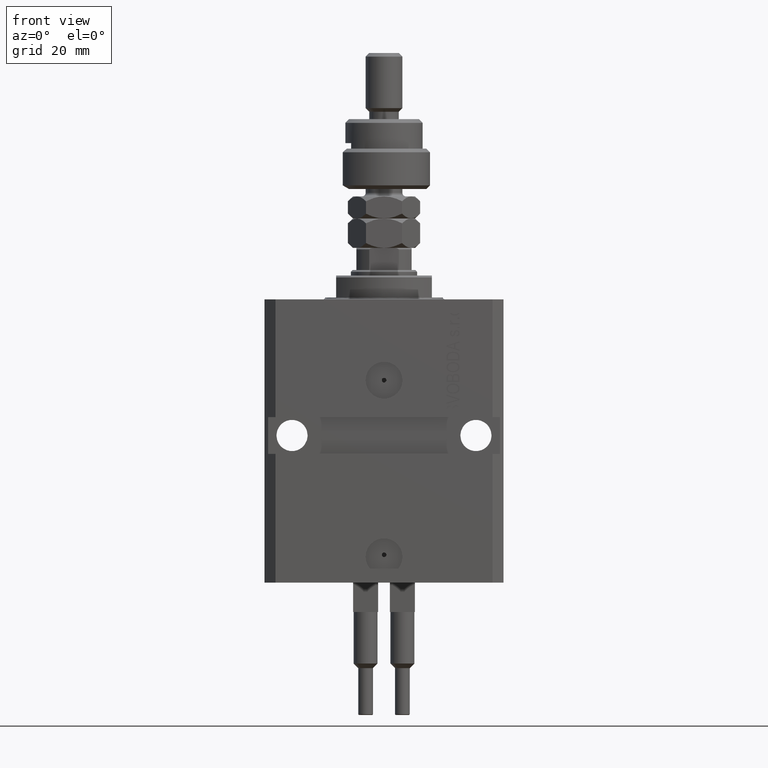
[diagram: clean part render]
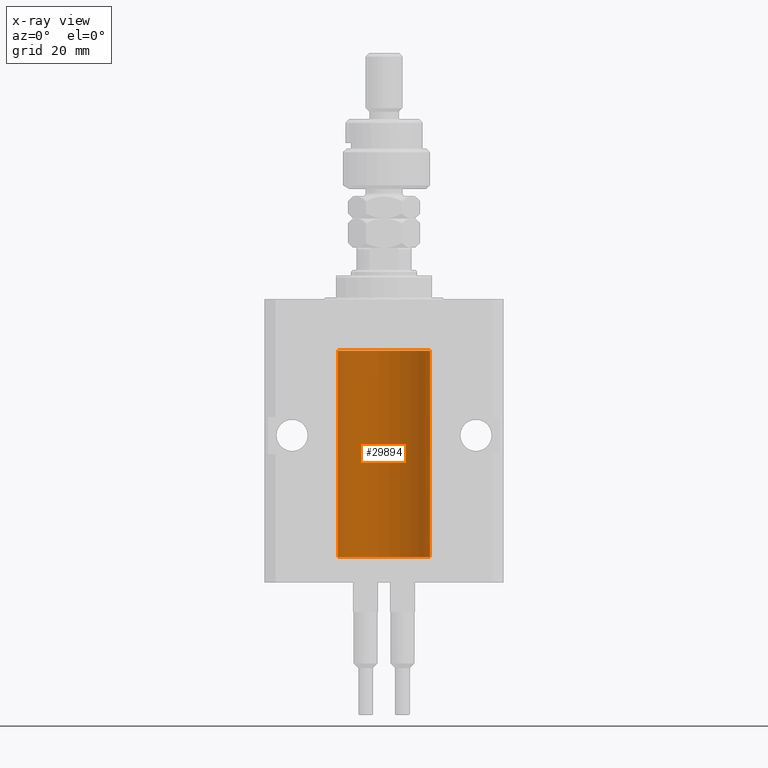
[diagram: x-ray — body ghosted, one internal face saturated and labeled with its STEP entity id]
A machine part, front view, then the same camera in x-ray: the body is ghosted and one INTERNAL B-rep face — a face not visible from any outside direction — is saturated and labeled: STEP entity #29894.
In plain terms, the highlighted cylindrical surface (partial cylindrical patch) has radius 12.5 mm, axis along (0, 0, 1).
Its self-contained STEP definition (entity closure, byte-faithful):
#1976 = CARTESIAN_POINT ( 'NONE',  ( 12.48436522214885080, 0.6250000000001435518, -22.16312747540306560 ) ) ;
#2001 = VERTEX_POINT ( 'NONE', #31284 ) ;
#2051 = AXIS2_PLACEMENT_3D ( 'NONE', #8150, #11751, #4046 ) ;
#2083 = ORIENTED_EDGE ( 'NONE', *, *, #42289, .T. ) ;
#2467 = CARTESIAN_POINT ( 'NONE',  ( 12.50000000000000000, -6.043189914290669986E-17, -22.62500000000000000 ) ) ;
#2958 = ORIENTED_EDGE ( 'NONE', *, *, #4509, .T. ) ;
#3753 = VERTEX_POINT ( 'NONE', #34932 ) ;
#3799 = CARTESIAN_POINT ( 'NONE',  ( 12.48809900631782099, 0.5573988467445673001, -65.32640147935475738 ) ) ;
#4046 = DIRECTION ( 'NONE',  ( 1.000000000000000000, 0.000000000000000000, 0.000000000000000000 ) ) ;
#4509 = EDGE_CURVE ( 'NONE', #37263, #4749, #19302, .T. ) ;
#4528 = EDGE_CURVE ( 'NONE', #22513, #2001, #8780, .T. ) ;
#4553 = CARTESIAN_POINT ( 'NONE',  ( 12.49915742890631876, 0.1636982395582385896, -65.60872397847025184 ) ) ;
#4593 = LINE ( 'NONE', #48269, #49114 ) ;
#4694 = ORIENTED_EDGE ( 'NONE', *, *, #5544, .T. ) ;
#4749 = VERTEX_POINT ( 'NONE', #37663 ) ;
#5305 = CARTESIAN_POINT ( 'NONE',  ( 12.50000000000000000, 0.000000000000000000, -70.09999999999999432 ) ) ;
#5544 = EDGE_CURVE ( 'NONE', #2001, #7371, #22794, .T. ) ;
#5564 = CARTESIAN_POINT ( 'NONE',  ( 12.49625698805481200, 0.3151108292486943241, -22.54593695688172161 ) ) ;
#7314 = ORIENTED_EDGE ( 'NONE', *, *, #26065, .T. ) ;
#7371 = VERTEX_POINT ( 'NONE', #50505 ) ;
#7433 = CARTESIAN_POINT ( 'NONE',  ( 12.48520578595314845, 0.6087855079133686065, -21.83656717509346024 ) ) ;
#7454 = VERTEX_POINT ( 'NONE', #25284 ) ;
#8150 = CARTESIAN_POINT ( 'NONE',  ( 0.000000000000000000, 0.000000000000000000, -13.99999999999999822 ) ) ;
#8780 = B_SPLINE_CURVE_WITH_KNOTS ( 'NONE', 3,
 ( #16123, #42858, #4553, #46971, #38743, #3799, #43356, #27934 ),
 .UNSPECIFIED., .F., .F.,
 ( 4, 2, 2, 4 ),
 ( 1.784246692340212412E-18, 0.0002443481056285665750, 0.0004886962112571313068, 0.0009773924225142606621 ),
 .UNSPECIFIED. ) ;
#9177 = CARTESIAN_POINT ( 'NONE',  ( 12.50000000000000178, 0.08262306818362646910, -22.62499999999997158 ) ) ;
#10021 = ORIENTED_EDGE ( 'NONE', *, *, #29961, .T. ) ;
#11751 = DIRECTION ( 'NONE',  ( 0.000000000000000000, 0.000000000000000000, 1.000000000000000000 ) ) ;
#11788 = CARTESIAN_POINT ( 'NONE',  ( 12.49999999999999112, 0.1631389616600886772, -21.37500000000019185 ) ) ;
#12041 = EDGE_CURVE ( 'NONE', #3753, #4749, #15662, .T. ) ;
#12355 = CARTESIAN_POINT ( 'NONE',  ( 12.48436522214846711, 0.6250000000078848039, -64.99999999999923261 ) ) ;
#12912 = LINE ( 'NONE', #17023, #29801 ) ;
#13190 = ORIENTED_EDGE ( 'NONE', *, *, #43307, .F. ) ;
#13278 = VERTEX_POINT ( 'NONE', #2467 ) ;
#13899 = ORIENTED_EDGE ( 'NONE', *, *, #4528, .T. ) ;
#14627 = AXIS2_PLACEMENT_3D ( 'NONE', #18750, #26966, #14894 ) ;
#14894 = DIRECTION ( 'NONE',  ( 1.000000000000000000, 0.000000000000000000, 0.000000000000000000 ) ) ;
#15559 = EDGE_CURVE ( 'NONE', #42394, #7454, #15983, .T. ) ;
#15662 = LINE ( 'NONE', #31079, #21892 ) ;
#15983 = B_SPLINE_CURVE_WITH_KNOTS ( 'NONE', 3,
 ( #47506, #16156, #7433, #34670, #22865, #19770, #11788, #23122 ),
 .UNSPECIFIED., .F., .F.,
 ( 4, 2, 2, 4 ),
 ( 0.0009773924225142526390, 0.001221629287363798890, 0.001465866152213344924, 0.001954339881912444798 ),
 .UNSPECIFIED. ) ;
#16123 = CARTESIAN_POINT ( 'NONE',  ( 12.50000000000000000, -1.836039810331332019E-15, -65.62500000000000000 ) ) ;
#16156 = CARTESIAN_POINT ( 'NONE',  ( 12.48436522214888100, 0.6249999999996767031, -21.91847339462351130 ) ) ;
#17023 = CARTESIAN_POINT ( 'NONE',  ( 12.50000000000000000, 0.000000000000000000, -70.09999999999999432 ) ) ;
#17139 = CARTESIAN_POINT ( 'NONE',  ( 12.48436522214846889, 0.6250000000078781426, -21.99999999999923261 ) ) ;
#17304 = CARTESIAN_POINT ( 'NONE',  ( 12.50000000000000000, 0.000000000000000000, -70.09999999999999432 ) ) ;
#17433 = VERTEX_POINT ( 'NONE', #17304 ) ;
#18750 = CARTESIAN_POINT ( 'NONE',  ( 0.000000000000000000, 0.000000000000000000, -70.09999999999999432 ) ) ;
#19302 = CIRCLE ( 'NONE', #2051, 12.50000000000000000 ) ;
#19517 = CYLINDRICAL_SURFACE ( 'NONE', #14627, 12.50000000000000000 ) ;
#19770 = CARTESIAN_POINT ( 'NONE',  ( 12.49631206032075958, 0.3252904079142805438, -21.44139700214925526 ) ) ;
#20272 = DIRECTION ( 'NONE',  ( -0.000000000000000000, -0.000000000000000000, 1.000000000000000000 ) ) ;
#21744 = LINE ( 'NONE', #5305, #45276 ) ;
#21892 = VECTOR ( 'NONE', #46248, 1000.000000000000000 ) ;
#22513 = VERTEX_POINT ( 'NONE', #45228 ) ;
#22794 = B_SPLINE_CURVE_WITH_KNOTS ( 'NONE', 3,
 ( #12355, #31632, #35231, #47313, #43961, #47824, #28287, #47570 ),
 .UNSPECIFIED., .F., .F.,
 ( 4, 2, 2, 4 ),
 ( 0.0009773924225142606621, 0.001221629287363811033, 0.001465866152213361404, 0.001954339881912461711 ),
 .UNSPECIFIED. ) ;
#22865 = CARTESIAN_POINT ( 'NONE',  ( 12.49012055744648997, 0.5002956126655978553, -21.61641710202404454 ) ) ;
#23122 = CARTESIAN_POINT ( 'NONE',  ( 12.50000000000017941, 3.868073565084946818E-13, -21.37499999999641176 ) ) ;
#25109 = CARTESIAN_POINT ( 'NONE',  ( 12.48436522214846889, 0.6250000000078781426, -21.99999999999923261 ) ) ;
#25284 = CARTESIAN_POINT ( 'NONE',  ( 12.50000000000017941, 3.868073565084946818E-13, -21.37499999999641176 ) ) ;
#25860 = CARTESIAN_POINT ( 'NONE',  ( 12.48809900631782099, 0.5573988467445616379, -22.32640147935473962 ) ) ;
#26065 = EDGE_CURVE ( 'NONE', #7371, #13278, #21744, .T. ) ;
#26966 = DIRECTION ( 'NONE',  ( -0.000000000000000000, -0.000000000000000000, 1.000000000000000000 ) ) ;
#27323 = AXIS2_PLACEMENT_3D ( 'NONE', #33312, #33820, #45395 ) ;
#27934 = CARTESIAN_POINT ( 'NONE',  ( 12.48436522214846711, 0.6250000000078848039, -64.99999999999923261 ) ) ;
#28287 = CARTESIAN_POINT ( 'NONE',  ( 12.49999999999999822, 0.1631389616600901760, -64.37500000000022737 ) ) ;
#28959 = EDGE_LOOP ( 'NONE', ( #35346, #13190, #38141, #13899, #4694, #7314, #2083, #38446, #10021, #2958 ) ) ;
#29706 = DIRECTION ( 'NONE',  ( -0.000000000000000000, -0.000000000000000000, 1.000000000000000000 ) ) ;
#29801 = VECTOR ( 'NONE', #37297, 1000.000000000000000 ) ;
#29894 = ADVANCED_FACE ( 'NONE', ( #42895 ), #19517, .F. ) ;
#29961 = EDGE_CURVE ( 'NONE', #7454, #37263, #4593, .T. ) ;
#31079 = CARTESIAN_POINT ( 'NONE',  ( -12.50000000000000000, 1.530808498934191521E-15, -70.09999999999999432 ) ) ;
#31284 = CARTESIAN_POINT ( 'NONE',  ( 12.48436522214846711, 0.6250000000078848039, -64.99999999999923261 ) ) ;
#31424 = CIRCLE ( 'NONE', #27323, 12.50000000000000000 ) ;
#31632 = CARTESIAN_POINT ( 'NONE',  ( 12.48436522214888100, 0.6249999999996834754, -64.91847339462351840 ) ) ;
#32564 = CARTESIAN_POINT ( 'NONE',  ( 12.49421963472024721, 0.3844519291903548686, -22.49947303647045871 ) ) ;
#33312 = CARTESIAN_POINT ( 'NONE',  ( 0.000000000000000000, 0.000000000000000000, -70.09999999999999432 ) ) ;
#33820 = DIRECTION ( 'NONE',  ( 0.000000000000000000, 0.000000000000000000, 1.000000000000000000 ) ) ;
#34670 = CARTESIAN_POINT ( 'NONE',  ( 12.48810305280568222, 0.5461368461738450586, -21.68525466142676805 ) ) ;
#34932 = CARTESIAN_POINT ( 'NONE',  ( -12.50000000000000000, 1.530808498934191521E-15, -70.09999999999999432 ) ) ;
#35231 = CARTESIAN_POINT ( 'NONE',  ( 12.48520578595314845, 0.6087855079133740466, -64.83656717509344958 ) ) ;
#35346 = ORIENTED_EDGE ( 'NONE', *, *, #12041, .F. ) ;
#36409 = CARTESIAN_POINT ( 'NONE',  ( 12.50000000000000000, -6.043189914290669986E-17, -22.62500000000000000 ) ) ;
#37160 = CARTESIAN_POINT ( 'NONE',  ( 12.49915742890631876, 0.1636982395582408101, -22.60872397847025894 ) ) ;
#37263 = VERTEX_POINT ( 'NONE', #49816 ) ;
#37297 = DIRECTION ( 'NONE',  ( -0.000000000000000000, -0.000000000000000000, 1.000000000000000000 ) ) ;
#37663 = CARTESIAN_POINT ( 'NONE',  ( -12.50000000000000000, 1.530808498934191521E-15, -13.99999999999999822 ) ) ;
#38141 = ORIENTED_EDGE ( 'NONE', *, *, #44003, .T. ) ;
#38446 = ORIENTED_EDGE ( 'NONE', *, *, #15559, .T. ) ;
#38743 = CARTESIAN_POINT ( 'NONE',  ( 12.49421963472024721, 0.3844519291903572555, -65.49947303647046226 ) ) ;
#42289 = EDGE_CURVE ( 'NONE', #13278, #42394, #46987, .T. ) ;
#42394 = VERTEX_POINT ( 'NONE', #25109 ) ;
#42858 = CARTESIAN_POINT ( 'NONE',  ( 12.49999999999999822, 0.08262306818362624705, -65.62500000000000000 ) ) ;
#42895 = FACE_OUTER_BOUND ( 'NONE', #28959, .T. ) ;
#43307 = EDGE_CURVE ( 'NONE', #17433, #3753, #31424, .T. ) ;
#43356 = CARTESIAN_POINT ( 'NONE',  ( 12.48436522214885969, 0.6250000000001505462, -65.16312747540307271 ) ) ;
#43961 = CARTESIAN_POINT ( 'NONE',  ( 12.49012055744648997, 0.5002956126656082914, -64.61641710202404454 ) ) ;
#44003 = EDGE_CURVE ( 'NONE', #17433, #22513, #12912, .T. ) ;
#45228 = CARTESIAN_POINT ( 'NONE',  ( 12.50000000000000000, -1.836039810331332019E-15, -65.62500000000000000 ) ) ;
#45276 = VECTOR ( 'NONE', #29706, 1000.000000000000000 ) ;
#45395 = DIRECTION ( 'NONE',  ( 1.000000000000000000, 0.000000000000000000, 0.000000000000000000 ) ) ;
#46248 = DIRECTION ( 'NONE',  ( -0.000000000000000000, -0.000000000000000000, 1.000000000000000000 ) ) ;
#46971 = CARTESIAN_POINT ( 'NONE',  ( 12.49625698805481022, 0.3151108292486944906, -65.54593695688173227 ) ) ;
#46987 = B_SPLINE_CURVE_WITH_KNOTS ( 'NONE', 3,
 ( #36409, #9177, #37160, #5564, #32564, #25860, #1976, #17139 ),
 .UNSPECIFIED., .F., .F.,
 ( 4, 2, 2, 4 ),
 ( 5.872716678082737689E-20, 0.0002443481056285632140, 0.0004886962112571263195, 0.0009773924225142526390 ),
 .UNSPECIFIED. ) ;
#47313 = CARTESIAN_POINT ( 'NONE',  ( 12.48810305280568222, 0.5461368461738485003, -64.68525466142676805 ) ) ;
#47506 = CARTESIAN_POINT ( 'NONE',  ( 12.48436522214846889, 0.6250000000078781426, -21.99999999999923261 ) ) ;
#47570 = CARTESIAN_POINT ( 'NONE',  ( 12.50000000000017941, 3.868073689162038701E-13, -64.37499999999640465 ) ) ;
#47824 = CARTESIAN_POINT ( 'NONE',  ( 12.49631206032076136, 0.3252904079142934779, -64.44139700214927302 ) ) ;
#48269 = CARTESIAN_POINT ( 'NONE',  ( 12.50000000000000000, 0.000000000000000000, -70.09999999999999432 ) ) ;
#49114 = VECTOR ( 'NONE', #20272, 1000.000000000000000 ) ;
#49816 = CARTESIAN_POINT ( 'NONE',  ( 12.50000000000000000, 0.000000000000000000, -13.99999999999999822 ) ) ;
#50505 = CARTESIAN_POINT ( 'NONE',  ( 12.50000000000017941, 3.868073689162038701E-13, -64.37499999999640465 ) ) ;